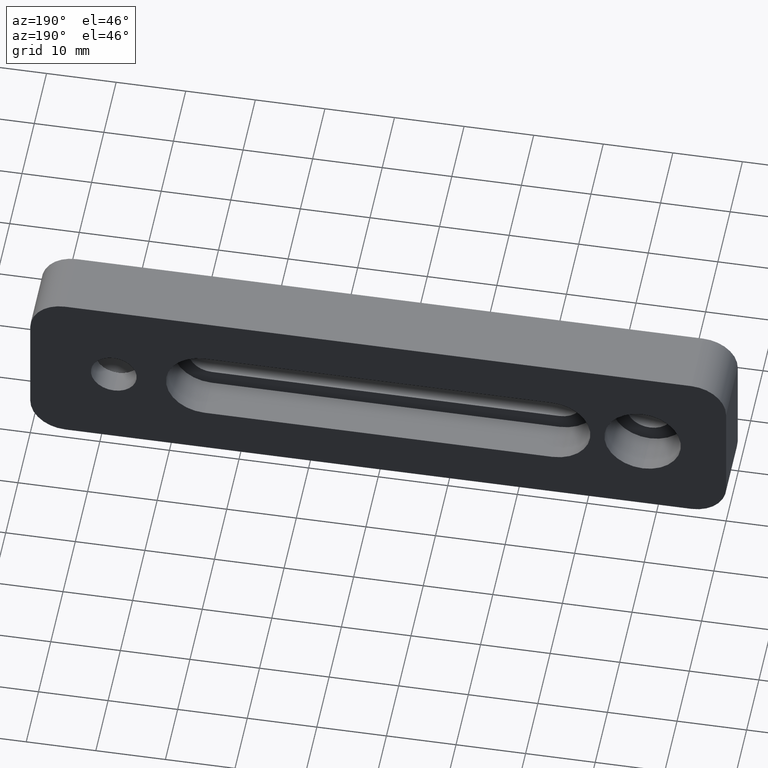
[diagram: clean part render]
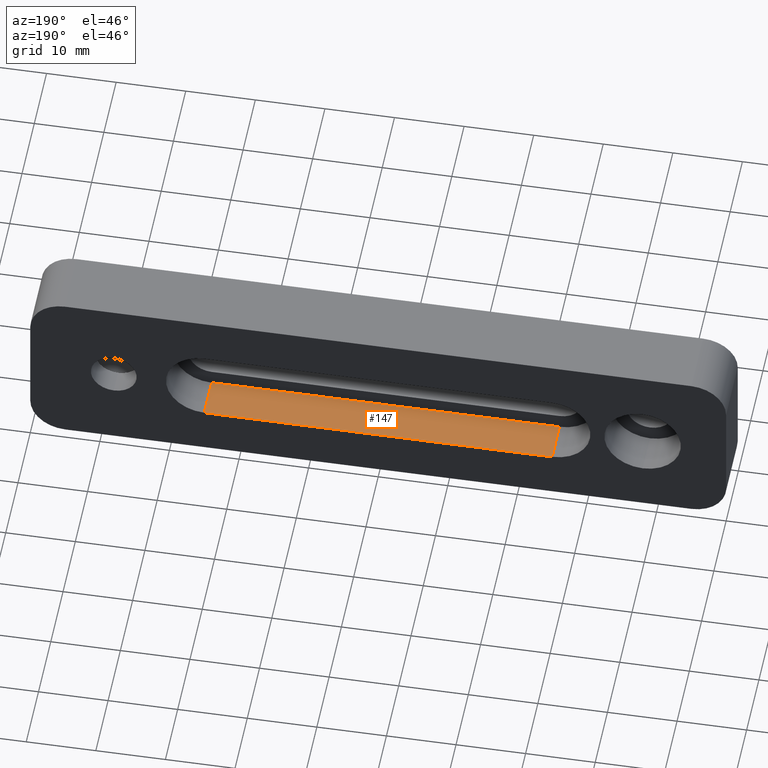
[diagram: same view with one face highlighted and labeled with its STEP entity id]
A machine part, auxiliary view. The second image highlights one B-rep face of the part: STEP entity #147.
In plain terms, the highlighted planar face has unit normal (-0, 0, 1).
Its self-contained STEP definition (entity closure, byte-faithful):
#9 = DIRECTION ( 'NONE',  ( 0.0000000000000000000, -1.000000000000000000, 0.0000000000000000000 ) ) ;
#12 = VERTEX_POINT ( 'NONE', #592 ) ;
#27 = EDGE_CURVE ( 'NONE', #546, #620, #676, .T. ) ;
#59 = ORIENTED_EDGE ( 'NONE', *, *, #401, .F. ) ;
#103 = VECTOR ( 'NONE', #525, 1000.000000000000000 ) ;
#106 = FACE_OUTER_BOUND ( 'NONE', #455, .T. ) ;
#130 = LINE ( 'NONE', #622, #481 ) ;
#147 = ADVANCED_FACE ( 'NONE', ( #106 ), #499, .T. ) ;
#188 = CARTESIAN_POINT ( 'NONE',  ( 0.0000000000000000000, 0.0000000000000000000, -5.499999999999997300 ) ) ;
#203 = ORIENTED_EDGE ( 'NONE', *, *, #301, .F. ) ;
#211 = CARTESIAN_POINT ( 'NONE',  ( -25.00000000000000000, 0.0000000000000000000, -5.499999999999997300 ) ) ;
#301 = EDGE_CURVE ( 'NONE', #546, #12, #348, .T. ) ;
#348 = LINE ( 'NONE', #188, #907 ) ;
#353 = VERTEX_POINT ( 'NONE', #543 ) ;
#401 = EDGE_CURVE ( 'NONE', #12, #353, #834, .T. ) ;
#420 = DIRECTION ( 'NONE',  ( 1.000000000000000000, 0.0000000000000000000, 0.0000000000000000000 ) ) ;
#439 = DIRECTION ( 'NONE',  ( 1.000000000000000000, 0.0000000000000000000, 0.0000000000000000000 ) ) ;
#455 = EDGE_LOOP ( 'NONE', ( #732, #792, #59, #203 ) ) ;
#462 = CARTESIAN_POINT ( 'NONE',  ( -25.00000000000000000, 4.000000000000000000, -5.499999999999997300 ) ) ;
#481 = VECTOR ( 'NONE', #661, 1000.000000000000000 ) ;
#496 = DIRECTION ( 'NONE',  ( -0.0000000000000000000, 0.0000000000000000000, 1.000000000000000000 ) ) ;
#499 = PLANE ( 'NONE',  #833 ) ;
#525 = DIRECTION ( 'NONE',  ( 0.0000000000000000000, -1.000000000000000000, 0.0000000000000000000 ) ) ;
#543 = CARTESIAN_POINT ( 'NONE',  ( 25.00000000000000000, -6.000000000000000000, -5.499999999999998200 ) ) ;
#546 = VERTEX_POINT ( 'NONE', #211 ) ;
#564 = CARTESIAN_POINT ( 'NONE',  ( 25.00000000000000000, 0.0000000000000000000, -5.499999999999998200 ) ) ;
#592 = CARTESIAN_POINT ( 'NONE',  ( 25.00000000000000000, 0.0000000000000000000, -5.499999999999998200 ) ) ;
#616 = CARTESIAN_POINT ( 'NONE',  ( -25.00000000000000000, -6.000000000000000000, -5.499999999999997300 ) ) ;
#620 = VERTEX_POINT ( 'NONE', #616 ) ;
#622 = CARTESIAN_POINT ( 'NONE',  ( -25.00000000000000000, -6.000000000000000000, -5.499999999999997300 ) ) ;
#661 = DIRECTION ( 'NONE',  ( -1.000000000000000000, -0.0000000000000000000, -0.0000000000000000000 ) ) ;
#676 = LINE ( 'NONE', #462, #103 ) ;
#686 = EDGE_CURVE ( 'NONE', #353, #620, #130, .T. ) ;
#732 = ORIENTED_EDGE ( 'NONE', *, *, #27, .T. ) ;
#792 = ORIENTED_EDGE ( 'NONE', *, *, #686, .F. ) ;
#810 = VECTOR ( 'NONE', #9, 1000.000000000000000 ) ;
#832 = CARTESIAN_POINT ( 'NONE',  ( -25.00000000000000000, 4.000000000000000000, -5.499999999999997300 ) ) ;
#833 = AXIS2_PLACEMENT_3D ( 'NONE', #832, #496, #420 ) ;
#834 = LINE ( 'NONE', #564, #810 ) ;
#907 = VECTOR ( 'NONE', #439, 1000.000000000000000 ) ;